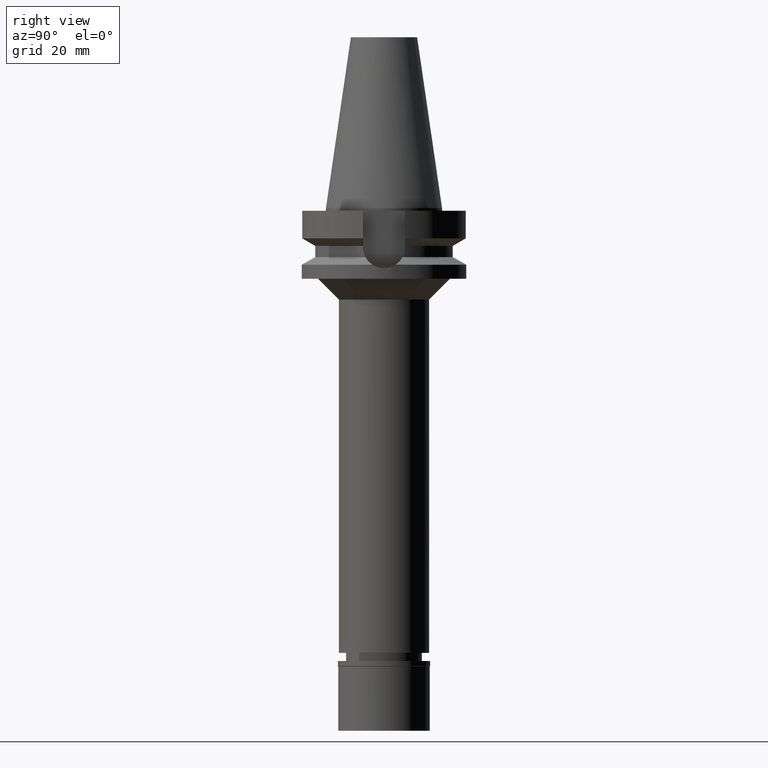
[diagram: clean part render]
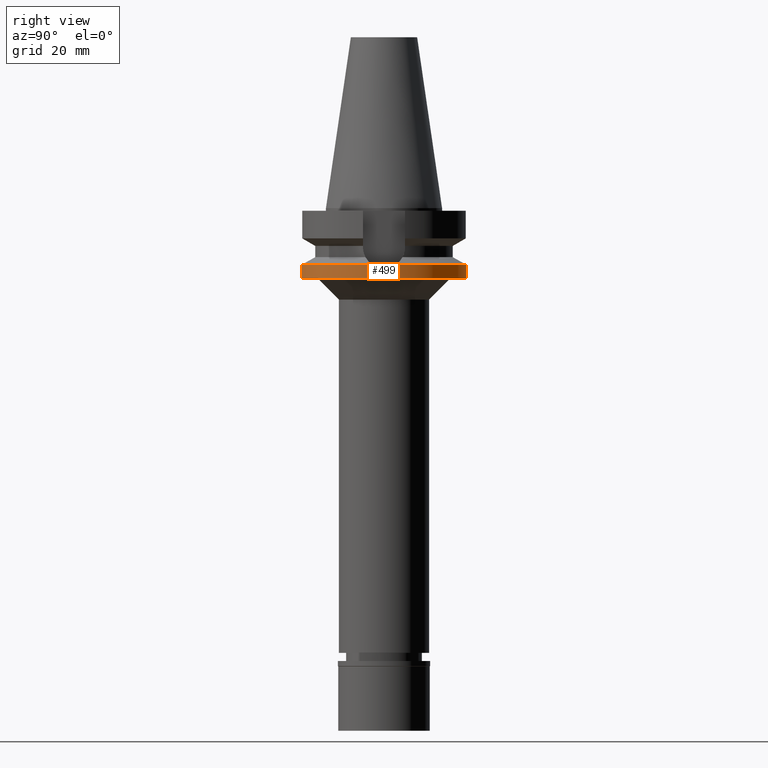
[diagram: same view with one face highlighted and labeled with its STEP entity id]
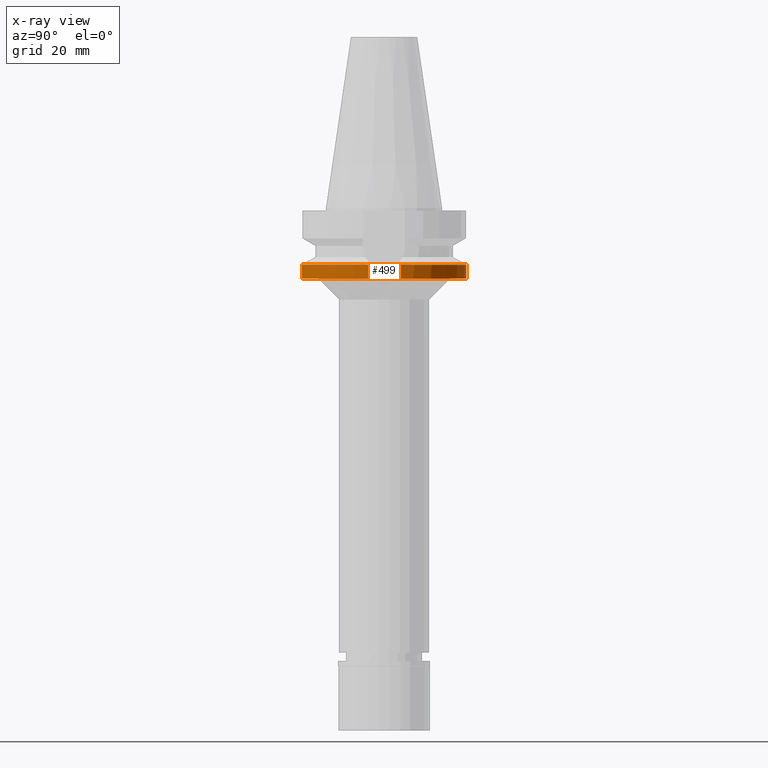
[diagram: x-ray of the same camera — body ghosted, the highlighted face saturated]
A machine part, right view. The second image highlights one B-rep face of the part: STEP entity #499.
The next image is the same camera in x-ray: the body ghosted, the highlighted face saturated — about 0% of this face is hidden behind the body in this view.
In plain terms, the highlighted cylindrical surface (partial cylindrical patch) has radius 31.5 mm, axis along (0, 0, -1).
Its self-contained STEP definition (entity closure, byte-faithful):
#43 = ORIENTED_EDGE ( 'NONE', *, *, #877, .T. ) ;
#83 = VERTEX_POINT ( 'NONE', #1581 ) ;
#124 = CARTESIAN_POINT ( 'NONE',  ( 31.50000000000000000, 0.7893228960917848536, -22.99999999246999494 ) ) ;
#131 = CARTESIAN_POINT ( 'NONE',  ( 31.34931201370710951, -3.083041250869246852, -22.38888621542529833 ) ) ;
#218 = ORIENTED_EDGE ( 'NONE', *, *, #2552, .T. ) ;
#261 = VERTEX_POINT ( 'NONE', #1662 ) ;
#268 = EDGE_LOOP ( 'NONE', ( #1615, #1145, #434, #1178, #43, #1094, #218 ) ) ;
#290 = B_SPLINE_CURVE_WITH_KNOTS ( 'NONE', 3,
 ( #514, #1488, #2801, #2105, #2286, #1602, #592, #131, #1584, #2992, #2573, #400 ),
 .UNSPECIFIED., .F., .F.,
 ( 4, 2, 2, 2, 2, 4 ),
 ( 0.0000000000000000000, 0.2500000000000001110, 0.5000000000000002220, 0.6250000000000005551, 0.7500000000000007772, 1.000000000000000000 ),
 .UNSPECIFIED. ) ;
#302 = CARTESIAN_POINT ( 'NONE',  ( 0.0000000000000000000, 0.0000000000000000000, -27.00000000000000000 ) ) ;
#400 = CARTESIAN_POINT ( 'NONE',  ( 31.17899877608999759, -4.485536235554000051, -21.63449434733000132 ) ) ;
#414 = VERTEX_POINT ( 'NONE', #3090 ) ;
#434 = ORIENTED_EDGE ( 'NONE', *, *, #1493, .T. ) ;
#499 = ADVANCED_FACE ( 'NONE', ( #1677 ), #2877, .T. ) ;
#514 = CARTESIAN_POINT ( 'NONE',  ( 31.49999996193000129, 0.0000000000000000000, -22.99999999246999849 ) ) ;
#524 = DIRECTION ( 'NONE',  ( 0.0000000000000000000, 0.0000000000000000000, -1.000000000000000000 ) ) ;
#527 = VERTEX_POINT ( 'NONE', #2729 ) ;
#534 = VERTEX_POINT ( 'NONE', #1578 ) ;
#592 = CARTESIAN_POINT ( 'NONE',  ( 31.38349281223893428, -2.713095278730501825, -22.53165905934999813 ) ) ;
#620 = CARTESIAN_POINT ( 'NONE',  ( 31.46967813601855113, 1.577121388464395091, -22.88366912229910000 ) ) ;
#758 = DIRECTION ( 'NONE',  ( 0.0000000000000000000, 1.000000000000000000, 0.0000000000000000000 ) ) ;
#776 = CARTESIAN_POINT ( 'NONE',  ( 0.0000000000000000000, -31.50000000000000000, -21.63449434733000132 ) ) ;
#851 = CARTESIAN_POINT ( 'NONE',  ( 31.17899877608999759, 4.485536235554000051, -21.63449434733000132 ) ) ;
#877 = EDGE_CURVE ( 'NONE', #1054, #414, #3008, .T. ) ;
#880 = CARTESIAN_POINT ( 'NONE',  ( 0.0000000000000000000, 31.50000000000000000, -21.63449434733000132 ) ) ;
#1050 = CARTESIAN_POINT ( 'NONE',  ( 0.0000000000000000000, 31.50000000000000000, -21.63449434733000132 ) ) ;
#1054 = VERTEX_POINT ( 'NONE', #1050 ) ;
#1094 = ORIENTED_EDGE ( 'NONE', *, *, #1125, .T. ) ;
#1099 = CARTESIAN_POINT ( 'NONE',  ( 31.49999996193000129, 0.0000000000000000000, -22.99999999246999849 ) ) ;
#1125 = EDGE_CURVE ( 'NONE', #414, #534, #1514, .T. ) ;
#1145 = ORIENTED_EDGE ( 'NONE', *, *, #1370, .T. ) ;
#1178 = ORIENTED_EDGE ( 'NONE', *, *, #1676, .F. ) ;
#1244 = CARTESIAN_POINT ( 'NONE',  ( 0.0000000000000000000, 0.0000000000000000000, 0.0000000000000000000 ) ) ;
#1285 = DIRECTION ( 'NONE',  ( 0.0000000000000000000, 0.0000000000000000000, 1.000000000000000000 ) ) ;
#1370 = EDGE_CURVE ( 'NONE', #527, #261, #1798, .T. ) ;
#1457 = CARTESIAN_POINT ( 'NONE',  ( 31.17899877608999759, -4.485536235554000051, -21.63449434733000132 ) ) ;
#1488 = CARTESIAN_POINT ( 'NONE',  ( 31.50000000000000000, -0.3946489825588889166, -22.99999999247000204 ) ) ;
#1493 = EDGE_CURVE ( 'NONE', #261, #83, #1612, .T. ) ;
#1501 = DIRECTION ( 'NONE',  ( 0.0000000000000000000, -1.000000000000000000, 0.0000000000000000000 ) ) ;
#1514 = B_SPLINE_CURVE_WITH_KNOTS ( 'NONE', 3,
 ( #851, #1871, #2808, #620, #124, #1099 ),
 .UNSPECIFIED., .F., .F.,
 ( 4, 2, 4 ),
 ( 0.0000000000000000000, 0.5000000000000000000, 1.000000000000000000 ),
 .UNSPECIFIED. ) ;
#1578 = CARTESIAN_POINT ( 'NONE',  ( 31.49999996193000129, 0.0000000000000000000, -22.99999999246999849 ) ) ;
#1581 = CARTESIAN_POINT ( 'NONE',  ( 0.0000000000000000000, 31.50000000000000000, -27.00000000000000000 ) ) ;
#1584 = CARTESIAN_POINT ( 'NONE',  ( 31.33093625610500865, -3.264282485479466089, -22.31116215335108777 ) ) ;
#1592 = DIRECTION ( 'NONE',  ( 0.0000000000000000000, 1.099151708819000049E-13, -1.000000000000000000 ) ) ;
#1602 = CARTESIAN_POINT ( 'NONE',  ( 31.39917437065900430, -2.525512719985080867, -22.59617636623681136 ) ) ;
#1604 = AXIS2_PLACEMENT_3D ( 'NONE', #1244, #524, #1501 ) ;
#1612 = CIRCLE ( 'NONE', #2506, 31.50000000000000000 ) ;
#1615 = ORIENTED_EDGE ( 'NONE', *, *, #2398, .T. ) ;
#1662 = CARTESIAN_POINT ( 'NONE',  ( 0.0000000000000000000, -31.50000000000000000, -27.00000000000000000 ) ) ;
#1676 = EDGE_CURVE ( 'NONE', #1054, #83, #2081, .T. ) ;
#1677 = FACE_OUTER_BOUND ( 'NONE', #268, .T. ) ;
#1729 = DIRECTION ( 'NONE',  ( 0.0000000000000000000, -1.000000000000000000, 0.0000000000000000000 ) ) ;
#1749 = AXIS2_PLACEMENT_3D ( 'NONE', #2432, #2962, #2699 ) ;
#1798 = LINE ( 'NONE', #776, #2359 ) ;
#1871 = CARTESIAN_POINT ( 'NONE',  ( 31.27448351132690263, 3.821821066019985391, -22.07987110858872981 ) ) ;
#2081 = LINE ( 'NONE', #880, #2195 ) ;
#2105 = CARTESIAN_POINT ( 'NONE',  ( 31.46325653616142404, -1.570696697282520482, -22.85519656278618683 ) ) ;
#2194 = CARTESIAN_POINT ( 'NONE',  ( 0.0000000000000000000, 0.0000000000000000000, -21.63449434733000132 ) ) ;
#2195 = VECTOR ( 'NONE', #1592, 1000.000000000000000 ) ;
#2283 = VERTEX_POINT ( 'NONE', #1457 ) ;
#2286 = CARTESIAN_POINT ( 'NONE',  ( 31.44158810261918902, -1.954993661539963012, -22.76912094167066769 ) ) ;
#2305 = AXIS2_PLACEMENT_3D ( 'NONE', #2194, #2864, #758 ) ;
#2359 = VECTOR ( 'NONE', #2507, 1000.000000000000000 ) ;
#2398 = EDGE_CURVE ( 'NONE', #2283, #527, #3086, .T. ) ;
#2432 = CARTESIAN_POINT ( 'NONE',  ( 0.0000000000000000000, 0.0000000000000000000, -21.63449434733000132 ) ) ;
#2506 = AXIS2_PLACEMENT_3D ( 'NONE', #302, #1285, #1729 ) ;
#2507 = DIRECTION ( 'NONE',  ( 0.0000000000000000000, -1.099151708819000049E-13, -1.000000000000000000 ) ) ;
#2552 = EDGE_CURVE ( 'NONE', #534, #2283, #290, .T. ) ;
#2573 = CARTESIAN_POINT ( 'NONE',  ( 31.22674267685809824, -4.153667993857466989, -21.85718987913849887 ) ) ;
#2699 = DIRECTION ( 'NONE',  ( 0.9898094849552905306, -0.1423979757318985240, 0.0000000000000000000 ) ) ;
#2729 = CARTESIAN_POINT ( 'NONE',  ( 0.0000000000000000000, -31.50000000000000000, -21.63449434733000132 ) ) ;
#2801 = CARTESIAN_POINT ( 'NONE',  ( 31.49259574144652873, -0.7874093223876101888, -22.97110111160631618 ) ) ;
#2808 = CARTESIAN_POINT ( 'NONE',  ( 31.35695795849357381, 3.093402891286891165, -22.42402698874590072 ) ) ;
#2864 = DIRECTION ( 'NONE',  ( 0.0000000000000000000, 0.0000000000000000000, -1.000000000000000000 ) ) ;
#2877 = CYLINDRICAL_SURFACE ( 'NONE', #1604, 31.50000000000000000 ) ;
#2962 = DIRECTION ( 'NONE',  ( 0.0000000000000000000, 0.0000000000000000000, -1.000000000000000000 ) ) ;
#2992 = CARTESIAN_POINT ( 'NONE',  ( 31.27123591006818160, -3.806866424417347794, -22.05419377211983445 ) ) ;
#3008 = CIRCLE ( 'NONE', #2305, 31.50000000000000000 ) ;
#3086 = CIRCLE ( 'NONE', #1749, 31.50000000000001421 ) ;
#3090 = CARTESIAN_POINT ( 'NONE',  ( 31.17899877608999759, 4.485536235554000051, -21.63449434733000132 ) ) ;